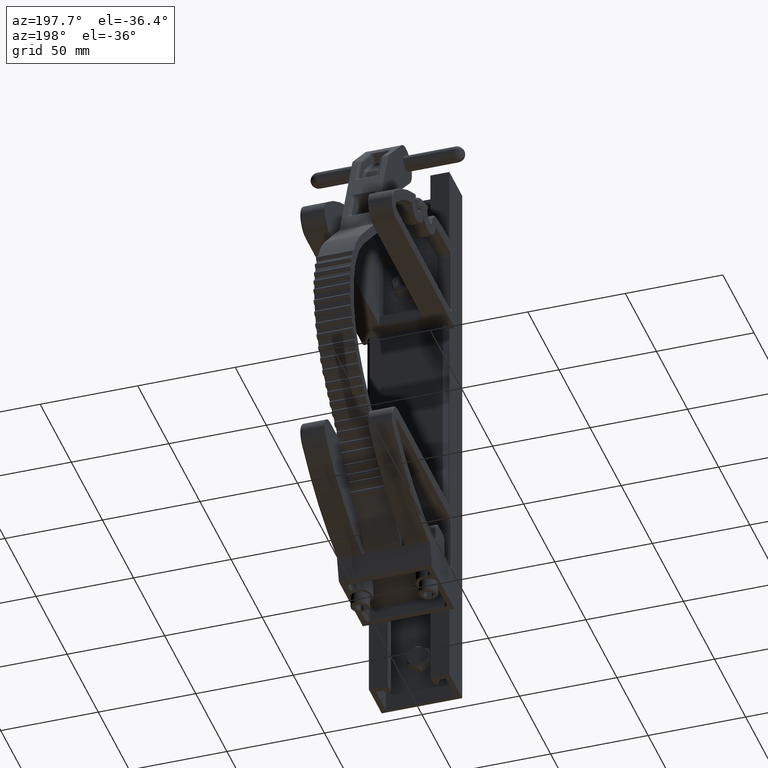
[diagram: clean part render]
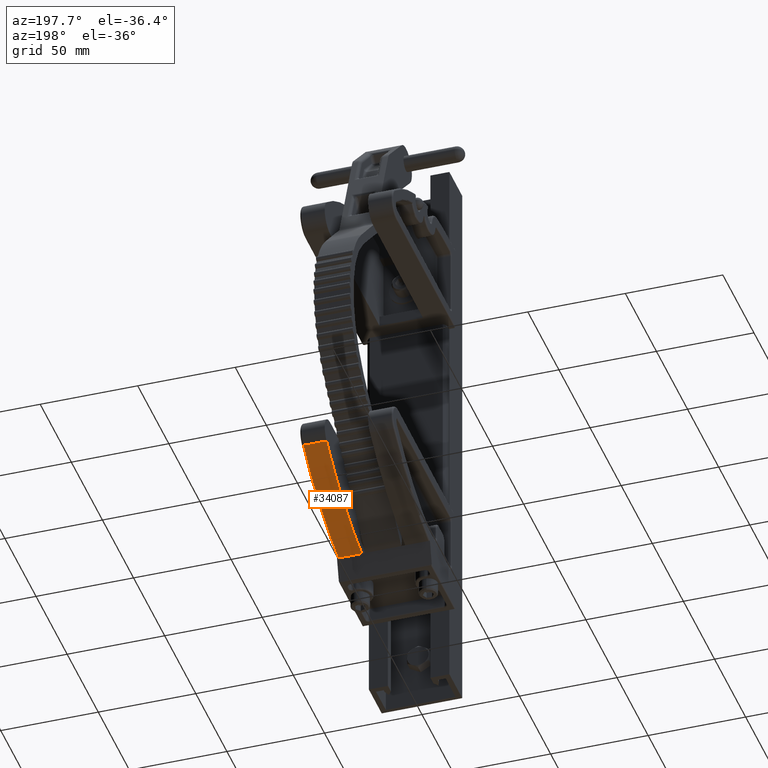
[diagram: same view with one face highlighted and labeled with its STEP entity id]
A machine part, auxiliary view. The second image highlights one B-rep face of the part: STEP entity #34087.
In plain terms, the highlighted cylindrical surface (partial cylindrical patch) has radius 129.63 mm, axis along (1, 0, -0).
Its self-contained STEP definition (entity closure, byte-faithful):
#28 = VECTOR ( 'NONE', #7073, 39.37007874015748100 ) ;
#55 = CIRCLE ( 'NONE', #34485, 5.103538870235045300 ) ;
#66 = CARTESIAN_POINT ( 'NONE',  ( -1.728000000000002000, 1.624999999999998400, -0.4375000000000031100 ) ) ;
#3883 = AXIS2_PLACEMENT_3D ( 'NONE', #22332, #5311, #25154 ) ;
#4003 = DIRECTION ( 'NONE',  ( -1.082467449009530600E-015, 3.962698892778896400E-016, -1.000000000000000000 ) ) ;
#4540 = FACE_OUTER_BOUND ( 'NONE', #33417, .T. ) ;
#4944 = EDGE_CURVE ( 'NONE', #17219, #13409, #5788, .T. ) ;
#5311 = DIRECTION ( 'NONE',  ( 1.082467449009530600E-015, -3.962698892778896400E-016, 1.000000000000000000 ) ) ;
#5788 = LINE ( 'NONE', #35405, #28 ) ;
#6739 = VERTEX_POINT ( 'NONE', #35838 ) ;
#7073 = DIRECTION ( 'NONE',  ( -1.082467449009530600E-015, 3.962698892778896400E-016, -1.000000000000000000 ) ) ;
#9211 = CARTESIAN_POINT ( 'NONE',  ( -1.728000000000003100, 1.624999999999997800, -0.9062500000000037700 ) ) ;
#11217 = CYLINDRICAL_SURFACE ( 'NONE', #28002, 5.103538870235075500 ) ;
#13409 = VERTEX_POINT ( 'NONE', #9211 ) ;
#14943 = DIRECTION ( 'NONE',  ( -1.082467449009530600E-015, 3.962698892778896400E-016, -1.000000000000000000 ) ) ;
#15308 = CARTESIAN_POINT ( 'NONE',  ( 3.250000000000014700, 0.5000000000000010000, -0.4374999999999971700 ) ) ;
#16479 = CARTESIAN_POINT ( 'NONE',  ( -0.6003733570119353900, 3.849736409273518200, -0.9062500000000037700 ) ) ;
#17219 = VERTEX_POINT ( 'NONE', #66 ) ;
#18193 = DIRECTION ( 'NONE',  ( 5.352850371331544100E-016, 1.000000000000000000, -2.542603926382483600E-016 ) ) ;
#20668 = VECTOR ( 'NONE', #14943, 39.37007874015748100 ) ;
#22332 = CARTESIAN_POINT ( 'NONE',  ( 3.250000000000014700, 0.5000000000000010000, -0.9062499999999984500 ) ) ;
#23725 = EDGE_CURVE ( 'NONE', #31048, #13409, #29527, .T. ) ;
#25154 = DIRECTION ( 'NONE',  ( 1.000000000000000000, 5.620492889898088500E-016, 1.070570074266302500E-015 ) ) ;
#27745 = ORIENTED_EDGE ( 'NONE', *, *, #23725, .T. ) ;
#28002 = AXIS2_PLACEMENT_3D ( 'NONE', #35086, #4003, #32253 ) ;
#28493 = ORIENTED_EDGE ( 'NONE', *, *, #4944, .F. ) ;
#28953 = CARTESIAN_POINT ( 'NONE',  ( -0.6003733570119299500, 3.849736409273518200, 0.9374999999999964500 ) ) ;
#29527 = CIRCLE ( 'NONE', #3883, 5.103538870235075500 ) ;
#31048 = VERTEX_POINT ( 'NONE', #16479 ) ;
#32111 = EDGE_CURVE ( 'NONE', #6739, #31048, #36408, .T. ) ;
#32253 = DIRECTION ( 'NONE',  ( -1.000000000000000000, -5.620492889898088500E-016, -1.070570074266302500E-015 ) ) ;
#32917 = ORIENTED_EDGE ( 'NONE', *, *, #32111, .T. ) ;
#33417 = EDGE_LOOP ( 'NONE', ( #28493, #35392, #32917, #27745 ) ) ;
#34087 = ADVANCED_FACE ( 'NONE', ( #4540 ), #11217, .T. ) ;
#34485 = AXIS2_PLACEMENT_3D ( 'NONE', #15308, #34965, #18193 ) ;
#34965 = DIRECTION ( 'NONE',  ( -1.082467449009530200E-015, 5.341492344102370900E-016, -1.000000000000000000 ) ) ;
#35086 = CARTESIAN_POINT ( 'NONE',  ( 3.250000000000019500, 0.5000000000000010000, 0.9375000000000017800 ) ) ;
#35392 = ORIENTED_EDGE ( 'NONE', *, *, #36120, .T. ) ;
#35405 = CARTESIAN_POINT ( 'NONE',  ( -1.728000000000002000, 1.624999999999997800, 0.9374999999999964500 ) ) ;
#35838 = CARTESIAN_POINT ( 'NONE',  ( -0.6003733570119353900, 3.849736409273518200, -0.4375000000000015000 ) ) ;
#36120 = EDGE_CURVE ( 'NONE', #17219, #6739, #55, .T. ) ;
#36408 = LINE ( 'NONE', #28953, #20668 ) ;